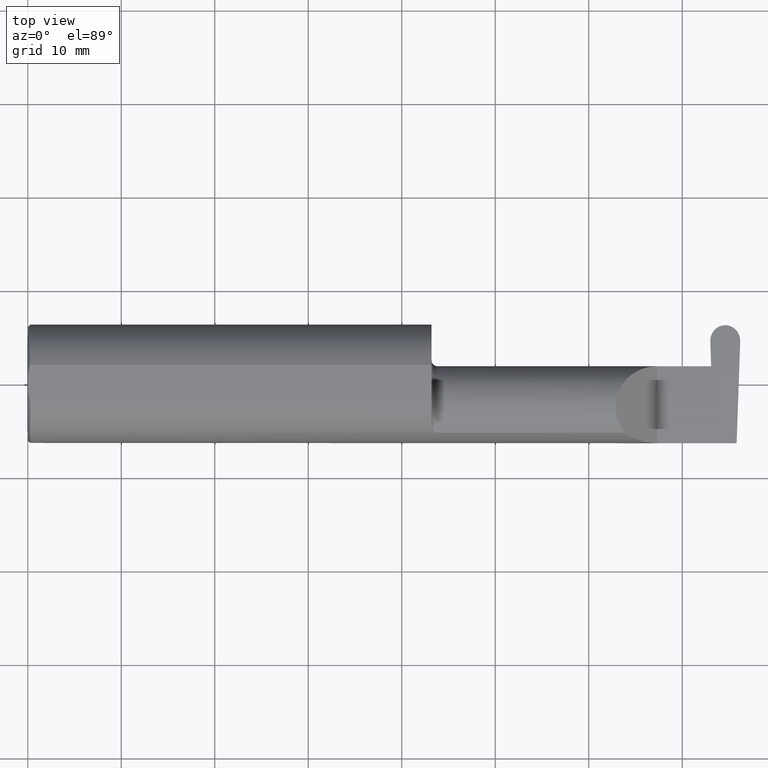
[diagram: clean part render]
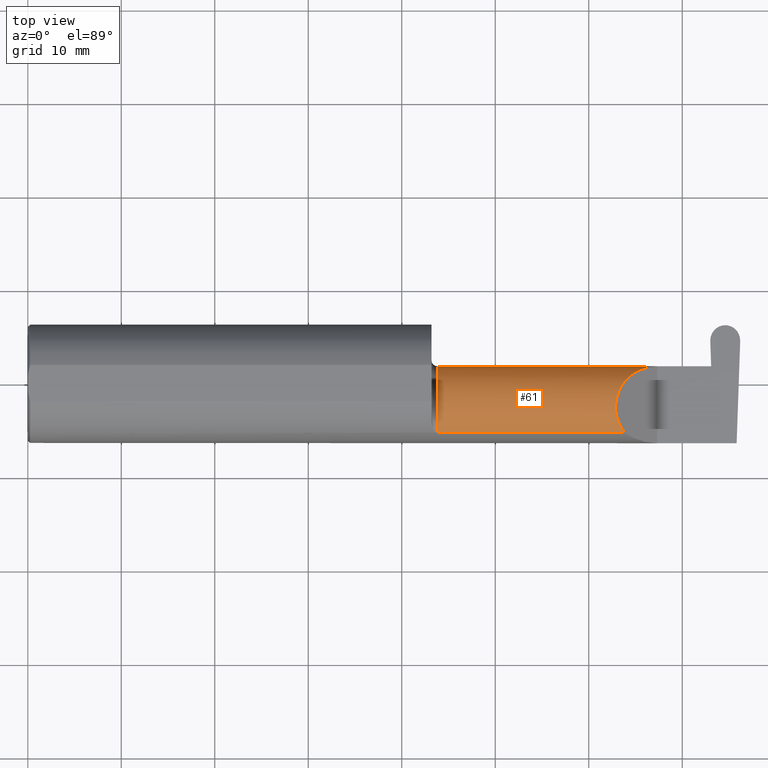
[diagram: same view with one face highlighted and labeled with its STEP entity id]
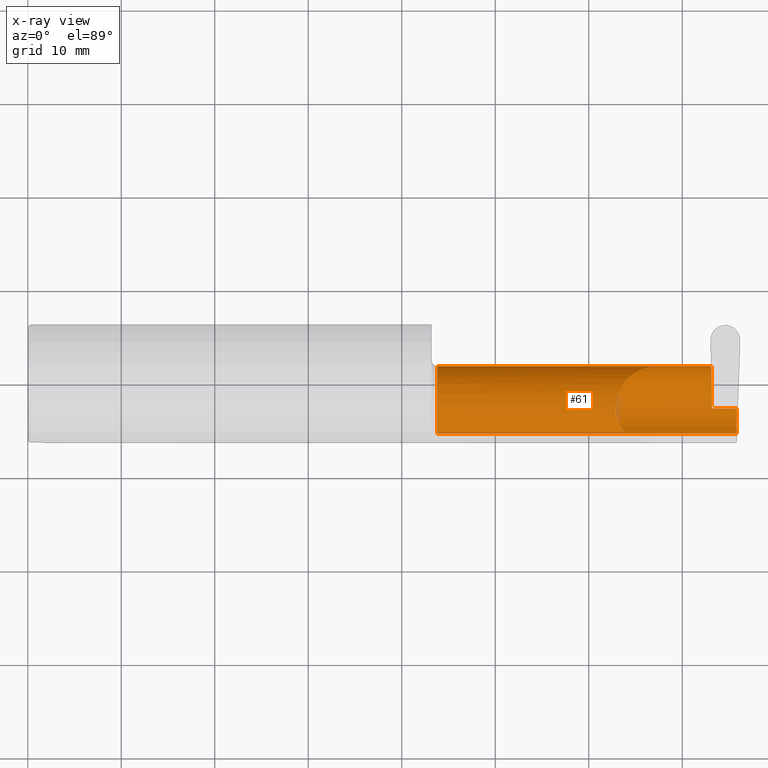
[diagram: x-ray of the same camera — body ghosted, the highlighted face saturated]
A machine part, top view. The second image highlights one B-rep face of the part: STEP entity #61.
The next image is the same camera in x-ray: the body ghosted, the highlighted face saturated — about 1% of this face is hidden behind the body in this view.
In plain terms, the highlighted cylindrical surface (partial cylindrical patch) has radius 4.445 mm, axis along (-1, -0, -0).
Its self-contained STEP definition (entity closure, byte-faithful):
#8 = CARTESIAN_POINT ( 'NONE',  ( 2.866439859938323398, 0.07404339472834126079, -0.006107411922953031799 ) ) ;
#11 = CARTESIAN_POINT ( 'NONE',  ( 2.987033238708274752, -0.1008499999999999674, -0.1750000000000000722 ) ) ;
#16 = LINE ( 'NONE', #559, #353 ) ;
#23 = ORIENTED_EDGE ( 'NONE', *, *, #97, .T. ) ;
#37 = CARTESIAN_POINT ( 'NONE',  ( 1.700000000000000178, -0.1008500000000000785, 0.000000000000000000 ) ) ;
#41 = CARTESIAN_POINT ( 'NONE',  ( 2.880773714454434753, -0.001152430219572253686, -0.1750000000000000722 ) ) ;
#43 = ORIENTED_EDGE ( 'NONE', *, *, #355, .F. ) ;
#61 = ADVANCED_FACE ( 'NONE', ( #373 ), #263, .T. ) ;
#74 = ORIENTED_EDGE ( 'NONE', *, *, #195, .T. ) ;
#81 = AXIS2_PLACEMENT_3D ( 'NONE', #37, #538, #94 ) ;
#84 = EDGE_CURVE ( 'NONE', #666, #117, #96, .T. ) ;
#87 = DIRECTION ( 'NONE',  ( 0.000000000000000000, -1.000000000000000000, 0.000000000000000000 ) ) ;
#93 = CARTESIAN_POINT ( 'NONE',  ( 2.866546465209982131, 0.07414999999999977165, 0.000000000000000000 ) ) ;
#94 = DIRECTION ( 'NONE',  ( 0.000000000000000000, -1.000000000000000000, 0.000000000000000000 ) ) ;
#96 = LINE ( 'NONE', #642, #182 ) ;
#97 = EDGE_CURVE ( 'NONE', #117, #650, #492, .T. ) ;
#98 = CARTESIAN_POINT ( 'NONE',  ( 2.880805159919762826, -0.1008500000000000368, -0.1750000000000000444 ) ) ;
#103 =( BOUNDED_CURVE ( )  B_SPLINE_CURVE ( 3, ( #98, #41, #361, #422 ),
 .UNSPECIFIED., .F., .F. ) 
 B_SPLINE_CURVE_WITH_KNOTS ( ( 4, 4 ),
 ( 3.159045946109733105, 4.694935687864651541 ),
 .UNSPECIFIED. ) 
 CURVE ( )  GEOMETRIC_REPRESENTATION_ITEM ( )  RATIONAL_B_SPLINE_CURVE ( ( 1.000000000000000000, 0.8128932002257887035, 0.8128932002257887035, 1.000000000000000000 ) ) 
 REPRESENTATION_ITEM ( '' )  );
#105 = DIRECTION ( 'NONE',  ( 1.000000000000000000, 5.818441080112232858E-17, 0.000000000000000000 ) ) ;
#117 = VERTEX_POINT ( 'NONE', #630 ) ;
#121 = ORIENTED_EDGE ( 'NONE', *, *, #173, .F. ) ;
#134 = ORIENTED_EDGE ( 'NONE', *, *, #579, .F. ) ;
#142 = CARTESIAN_POINT ( 'NONE',  ( 2.511704467739032332, -0.2080850024789289432, 0.1382955322609668858 ) ) ;
#148 = VECTOR ( 'NONE', #218, 39.37007874015748143 ) ;
#173 = EDGE_CURVE ( 'NONE', #605, #494, #581, .T. ) ;
#182 = VECTOR ( 'NONE', #530, 39.37007874015748143 ) ;
#192 = DIRECTION ( 'NONE',  ( -1.000000000000000000, -5.818441080112232858E-17, -0.000000000000000000 ) ) ;
#195 = EDGE_CURVE ( 'NONE', #650, #468, #379, .T. ) ;
#218 = DIRECTION ( 'NONE',  ( -1.000000000000000000, -0.000000000000000000, -0.000000000000000000 ) ) ;
#224 = CARTESIAN_POINT ( 'NONE',  ( 2.987033238708274752, -0.1008499999999999674, -0.1750000000000000722 ) ) ;
#235 = CARTESIAN_POINT ( 'NONE',  ( 1.725000000000000089, -0.1008500000000000785, 0.000000000000000000 ) ) ;
#241 = CARTESIAN_POINT ( 'NONE',  ( 2.985664738015655129, -0.1400387324517229082, -0.1750000000000001277 ) ) ;
#243 = EDGE_CURVE ( 'NONE', #318, #424, #329, .T. ) ;
#250 = CARTESIAN_POINT ( 'NONE',  ( 2.650000000000000355, 0.07414999999999997982, 1.592040838891556877E-16 ) ) ;
#254 = CARTESIAN_POINT ( 'NONE',  ( 2.866546465209982131, 0.07414999999999977165, 0.000000000000000000 ) ) ;
#261 = VERTEX_POINT ( 'NONE', #428 ) ;
#263 = CYLINDRICAL_SURFACE ( 'NONE', #81, 0.1750000000000000444 ) ;
#282 = CARTESIAN_POINT ( 'NONE',  ( 3.402190948718818664, -0.1008499999999999674, -0.1750000000000000722 ) ) ;
#299 = CARTESIAN_POINT ( 'NONE',  ( 1.725000000000000089, -0.2080850024789288877, -0.1382955322609669413 ) ) ;
#305 = AXIS2_PLACEMENT_3D ( 'NONE', #235, #192, #87 ) ;
#310 = CARTESIAN_POINT ( 'NONE',  ( 2.866475395028876161, 0.07407892981889409312, -0.004071607948635357424 ) ) ;
#318 = VERTEX_POINT ( 'NONE', #348 ) ;
#329 = LINE ( 'NONE', #656, #645 ) ;
#330 = ORIENTED_EDGE ( 'NONE', *, *, #84, .T. ) ;
#331 = CARTESIAN_POINT ( 'NONE',  ( 1.725000000000000089, -0.2080850024789289432, 0.1382955322609669135 ) ) ;
#332 = B_SPLINE_CURVE_WITH_KNOTS ( 'NONE', 3,
 ( #358, #310, #532, #254 ),
 .UNSPECIFIED., .F., .F.,
 ( 4, 4 ),
 ( 0.000000000000000000, 1.000000000000000000 ),
 .UNSPECIFIED. ) ;
#335 = DIRECTION ( 'NONE',  ( -1.000000000000000000, -5.818441080112232858E-17, -0.000000000000000000 ) ) ;
#343 = DIRECTION ( 'NONE',  ( -1.000000000000000000, -5.818441080112232858E-17, -0.000000000000000000 ) ) ;
#348 = CARTESIAN_POINT ( 'NONE',  ( 2.877698151322465314, 0.07404339472834124691, -0.006107411922953761250 ) ) ;
#353 = VECTOR ( 'NONE', #343, 39.37007874015748143 ) ;
#355 = EDGE_CURVE ( 'NONE', #666, #407, #623, .T. ) ;
#358 = CARTESIAN_POINT ( 'NONE',  ( 2.866439859938323398, 0.07404339472834126079, -0.006107411922953031799 ) ) ;
#359 = CARTESIAN_POINT ( 'NONE',  ( 2.482823929317965028, 0.07414999999999999369, 0.1671760706820338838 ) ) ;
#361 = CARTESIAN_POINT ( 'NONE',  ( 2.879499660824579088, 0.07056399972053264968, -0.1057442486376091589 ) ) ;
#368 = CARTESIAN_POINT ( 'NONE',  ( 2.880805159919762826, -0.1008500000000000368, -0.1750000000000000444 ) ) ;
#373 = FACE_OUTER_BOUND ( 'NONE', #388, .T. ) ;
#379 = LINE ( 'NONE', #544, #476 ) ;
#388 = EDGE_LOOP ( 'NONE', ( #658, #43, #330, #23, #74, #134, #484, #447, #121, #450 ) ) ;
#406 = EDGE_CURVE ( 'NONE', #261, #605, #521, .T. ) ;
#407 = VERTEX_POINT ( 'NONE', #299 ) ;
#422 = CARTESIAN_POINT ( 'NONE',  ( 2.877698151322465314, 0.07404339472834124691, -0.006107411922953761250 ) ) ;
#424 = VERTEX_POINT ( 'NONE', #8 ) ;
#426 = EDGE_CURVE ( 'NONE', #261, #407, #16, .T. ) ;
#428 = CARTESIAN_POINT ( 'NONE',  ( 2.983929579294953616, -0.2080850024789288877, -0.1382955322609668858 ) ) ;
#447 = ORIENTED_EDGE ( 'NONE', *, *, #481, .F. ) ;
#450 = ORIENTED_EDGE ( 'NONE', *, *, #406, .F. ) ;
#468 = VERTEX_POINT ( 'NONE', #93 ) ;
#476 = VECTOR ( 'NONE', #105, 39.37007874015748143 ) ;
#481 = EDGE_CURVE ( 'NONE', #494, #318, #103, .T. ) ;
#484 = ORIENTED_EDGE ( 'NONE', *, *, #243, .F. ) ;
#492 =( BOUNDED_CURVE ( )  B_SPLINE_CURVE ( 3, ( #142, #533, #359, #250 ),
 .UNSPECIFIED., .F., .F. ) 
 B_SPLINE_CURVE_WITH_KNOTS ( ( 4, 4 ),
 ( 5.623622464215681127, 7.853981633974482790 ),
 .UNSPECIFIED. ) 
 CURVE ( )  GEOMETRIC_REPRESENTATION_ITEM ( )  RATIONAL_B_SPLINE_CURVE ( ( 1.000000000000000000, 0.6266774836123996106, 0.6266774836123996106, 1.000000000000000000 ) ) 
 REPRESENTATION_ITEM ( '' )  );
#494 = VERTEX_POINT ( 'NONE', #368 ) ;
#519 = CARTESIAN_POINT ( 'NONE',  ( 2.983929579294953616, -0.2080850024789288877, -0.1382955322609668858 ) ) ;
#521 =( BOUNDED_CURVE ( )  B_SPLINE_CURVE ( 3, ( #519, #571, #241, #11 ),
 .UNSPECIFIED., .F., .T. ) 
 B_SPLINE_CURVE_WITH_KNOTS ( ( 4, 4 ),
 ( 0.4474640105399667611, 1.107026853503871644 ),
 .UNSPECIFIED. ) 
 CURVE ( )  GEOMETRIC_REPRESENTATION_ITEM ( )  RATIONAL_B_SPLINE_CURVE ( ( 1.000000000000000000, 0.9640754331822831702, 0.9640754331822831702, 1.000000000000000000 ) ) 
 REPRESENTATION_ITEM ( '' )  );
#530 = DIRECTION ( 'NONE',  ( 1.000000000000000000, 5.818441080112232858E-17, 0.000000000000000000 ) ) ;
#532 = CARTESIAN_POINT ( 'NONE',  ( 2.866510930119428924, 0.07411446490944693932, -0.002035803974317678278 ) ) ;
#533 = CARTESIAN_POINT ( 'NONE',  ( 2.409263745716142768, -0.07597241004310682777, 0.2407362542838554220 ) ) ;
#537 = CARTESIAN_POINT ( 'NONE',  ( 2.650000000000000355, 0.07414999999999997982, 1.592040838891556877E-16 ) ) ;
#538 = DIRECTION ( 'NONE',  ( -1.000000000000000000, -5.818441080112232858E-17, -0.000000000000000000 ) ) ;
#544 = CARTESIAN_POINT ( 'NONE',  ( 1.700000000000000178, 0.07414999999999992430, 1.592040838891556877E-16 ) ) ;
#559 = CARTESIAN_POINT ( 'NONE',  ( 2.299394315000000244, -0.2080850024789289432, -0.1382955322609668858 ) ) ;
#571 = CARTESIAN_POINT ( 'NONE',  ( 2.984591634083985756, -0.1771157075472506726, -0.1623092683844332140 ) ) ;
#579 = EDGE_CURVE ( 'NONE', #424, #468, #332, .T. ) ;
#581 = LINE ( 'NONE', #282, #148 ) ;
#605 = VERTEX_POINT ( 'NONE', #224 ) ;
#623 = CIRCLE ( 'NONE', #305, 0.1750000000000000444 ) ;
#630 = CARTESIAN_POINT ( 'NONE',  ( 2.511704467739032332, -0.2080850024789289432, 0.1382955322609668858 ) ) ;
#642 = CARTESIAN_POINT ( 'NONE',  ( 2.299394315000000244, -0.2080850024789289432, 0.1382955322609668858 ) ) ;
#645 = VECTOR ( 'NONE', #335, 39.37007874015748143 ) ;
#650 = VERTEX_POINT ( 'NONE', #537 ) ;
#656 = CARTESIAN_POINT ( 'NONE',  ( 1.700000000000000178, 0.07404339472834135794, -0.006107411922947746964 ) ) ;
#658 = ORIENTED_EDGE ( 'NONE', *, *, #426, .T. ) ;
#666 = VERTEX_POINT ( 'NONE', #331 ) ;